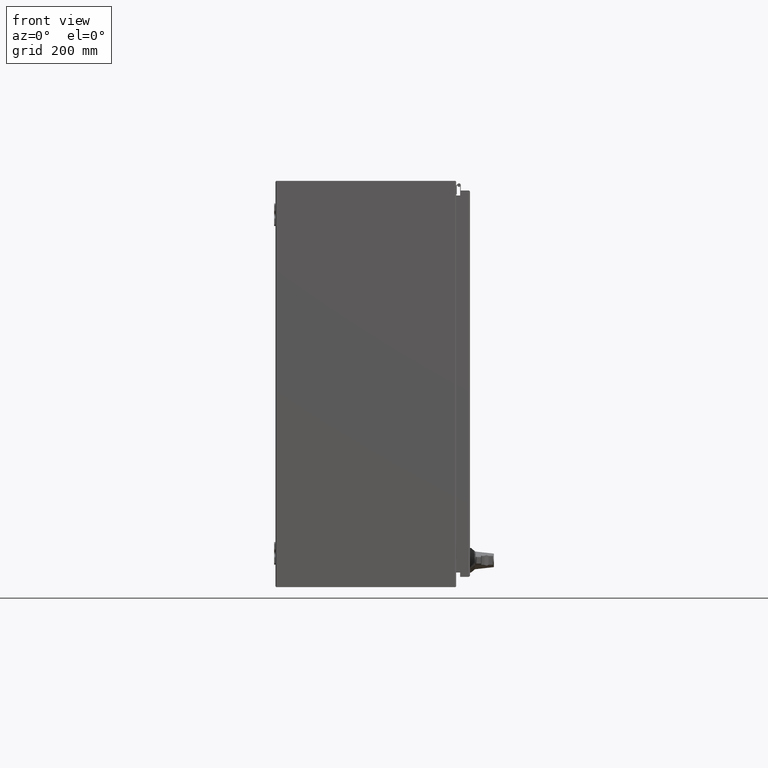
[diagram: clean part render]
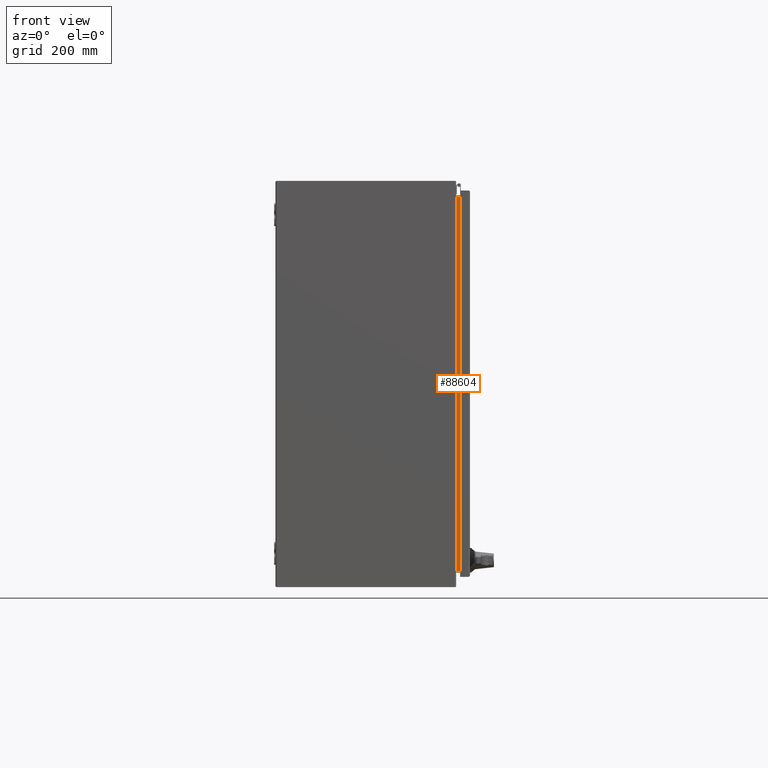
[diagram: same view with one face highlighted and labeled with its STEP entity id]
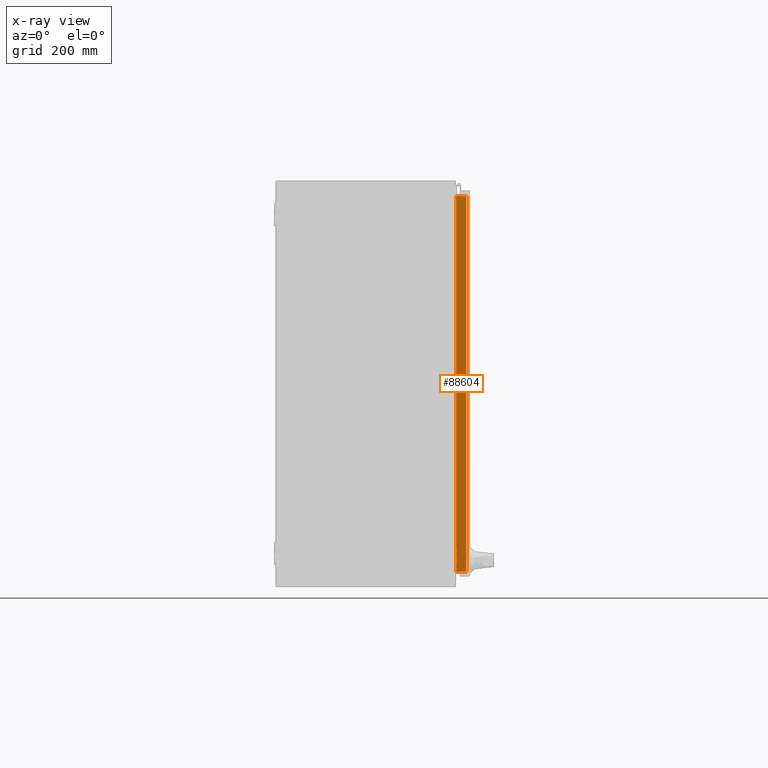
[diagram: x-ray of the same camera — body ghosted, the highlighted face saturated]
A machine part, front view. The second image highlights one B-rep face of the part: STEP entity #88604.
The next image is the same camera in x-ray: the body ghosted, the highlighted face saturated — about 0% of this face is hidden behind the body in this view.
In plain terms, the highlighted planar face has unit normal (-0, 1, -0).
Its self-contained STEP definition (entity closure, byte-faithful):
#2777 = DIRECTION ( 'NONE',  ( 0.0000000000000000000, -1.000000000000000000, 1.972152263052529951E-31 ) ) ;
#5189 = VECTOR ( 'NONE', #6126, 39.37007874015748143 ) ;
#5540 = LINE ( 'NONE', #15256, #63150 ) ;
#5550 = CARTESIAN_POINT ( 'NONE',  ( 16.63199999999999790, -16.03599999999992320, -22.69700000000000273 ) ) ;
#6126 = DIRECTION ( 'NONE',  ( 1.000000000000000000, -2.425444168319146831E-63, -1.229846302315929920E-32 ) ) ;
#15003 = CARTESIAN_POINT ( 'NONE',  ( -16.63200000000000145, -16.03599999999992320, -22.69700000000000273 ) ) ;
#15256 = CARTESIAN_POINT ( 'NONE',  ( -16.63200000000000145, -16.03599999999992320, -22.69700000000000273 ) ) ;
#19540 = VERTEX_POINT ( 'NONE', #5550 ) ;
#22778 = CARTESIAN_POINT ( 'NONE',  ( 16.63200000000000145, -16.03599999999992320, -22.69700000000000273 ) ) ;
#27347 = EDGE_CURVE ( 'NONE', #36239, #93814, #5540, .T. ) ;
#27711 = DIRECTION ( 'NONE',  ( 1.229846302315929920E-32, 1.972152263052529951E-31, 1.000000000000000000 ) ) ;
#29675 = LINE ( 'NONE', #78891, #55671 ) ;
#35282 = DIRECTION ( 'NONE',  ( 1.000000000000000000, -6.162975822039149940E-33, -1.004884120785580145E-47 ) ) ;
#36239 = VERTEX_POINT ( 'NONE', #15003 ) ;
#36524 = CARTESIAN_POINT ( 'NONE',  ( -17.92800000000000082, -16.00000000000003908, -22.69700000000000273 ) ) ;
#48242 = LINE ( 'NONE', #22778, #83814 ) ;
#55671 = VECTOR ( 'NONE', #35282, 39.37007874015748143 ) ;
#55682 = EDGE_CURVE ( 'NONE', #93814, #56360, #55963, .T. ) ;
#55963 = LINE ( 'NONE', #85040, #5189 ) ;
#56360 = VERTEX_POINT ( 'NONE', #79091 ) ;
#60554 = FACE_OUTER_BOUND ( 'NONE', #110755, .T. ) ;
#61453 = ORIENTED_EDGE ( 'NONE', *, *, #79301, .F. ) ;
#63150 = VECTOR ( 'NONE', #76106, 39.37007874015748143 ) ;
#64601 = AXIS2_PLACEMENT_3D ( 'NONE', #36524, #27711, #2777 ) ;
#66823 = ORIENTED_EDGE ( 'NONE', *, *, #55682, .F. ) ;
#76106 = DIRECTION ( 'NONE',  ( -6.162975822039149256E-33, -1.000000000000000000, -0.0000000000000000000 ) ) ;
#78891 = CARTESIAN_POINT ( 'NONE',  ( -17.92800000000000082, -16.03599999999992320, -22.69700000000000273 ) ) ;
#79091 = CARTESIAN_POINT ( 'NONE',  ( 16.63199999999999790, -16.90500000000004022, -22.69700000000000273 ) ) ;
#79301 = EDGE_CURVE ( 'NONE', #56360, #19540, #48242, .T. ) ;
#83814 = VECTOR ( 'NONE', #109290, 39.37007874015748143 ) ;
#85040 = CARTESIAN_POINT ( 'NONE',  ( -17.92800000000000082, -16.90500000000004022, -22.69700000000000273 ) ) ;
#88604 = ADVANCED_FACE ( 'NONE', ( #60554 ), #89718, .F. ) ;
#89718 = PLANE ( 'NONE',  #64601 ) ;
#93472 = ORIENTED_EDGE ( 'NONE', *, *, #27347, .F. ) ;
#93814 = VERTEX_POINT ( 'NONE', #112632 ) ;
#95969 = ORIENTED_EDGE ( 'NONE', *, *, #96410, .T. ) ;
#96410 = EDGE_CURVE ( 'NONE', #36239, #19540, #29675, .T. ) ;
#109290 = DIRECTION ( 'NONE',  ( 6.162975822039149256E-33, 1.000000000000000000, 0.0000000000000000000 ) ) ;
#110755 = EDGE_LOOP ( 'NONE', ( #93472, #95969, #61453, #66823 ) ) ;
#112632 = CARTESIAN_POINT ( 'NONE',  ( -16.63200000000000145, -16.90500000000004022, -22.69700000000000273 ) ) ;